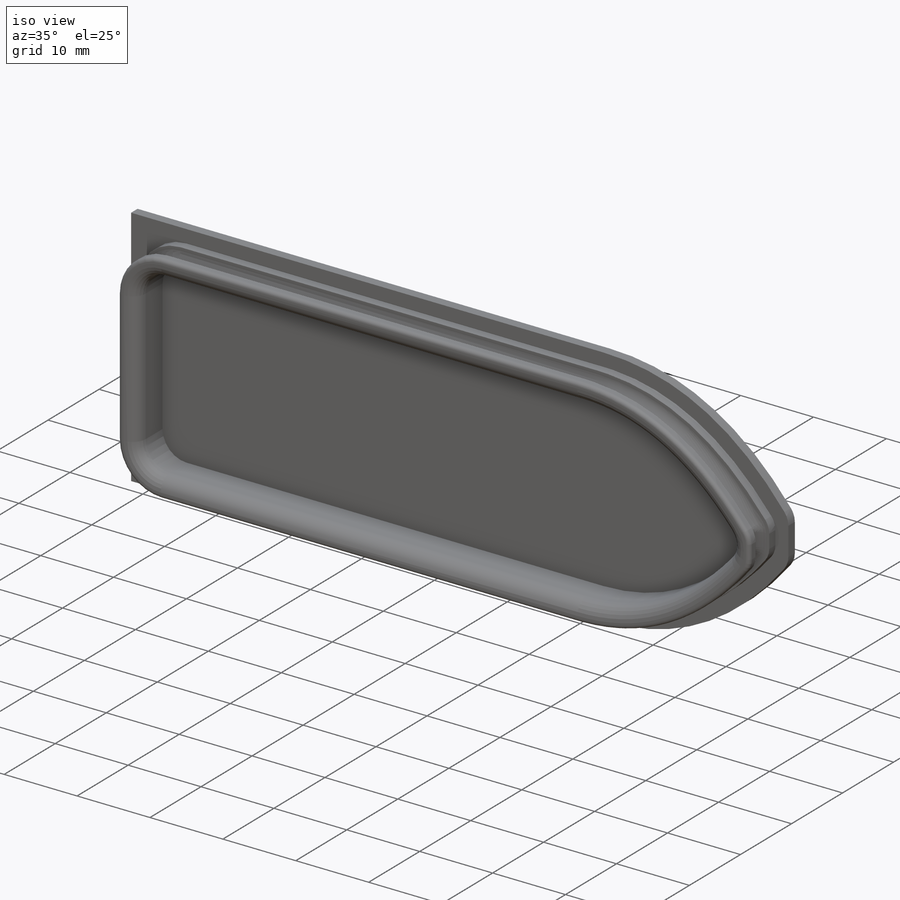
[diagram: iso view]
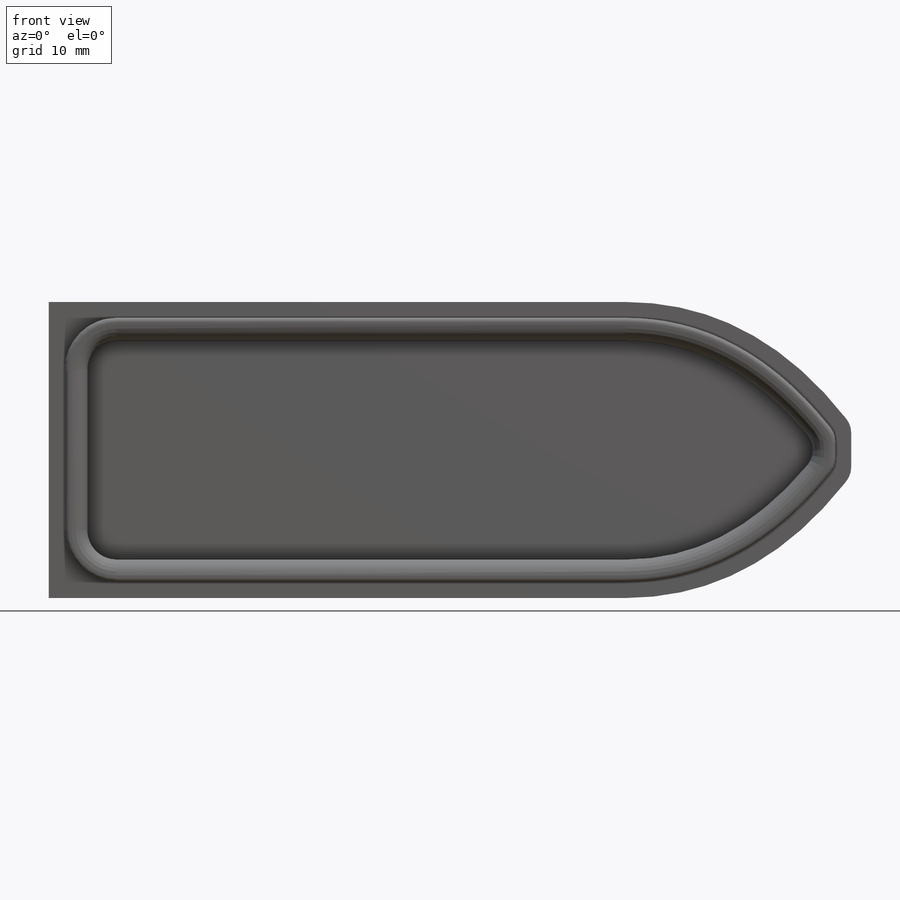
[diagram: front view]
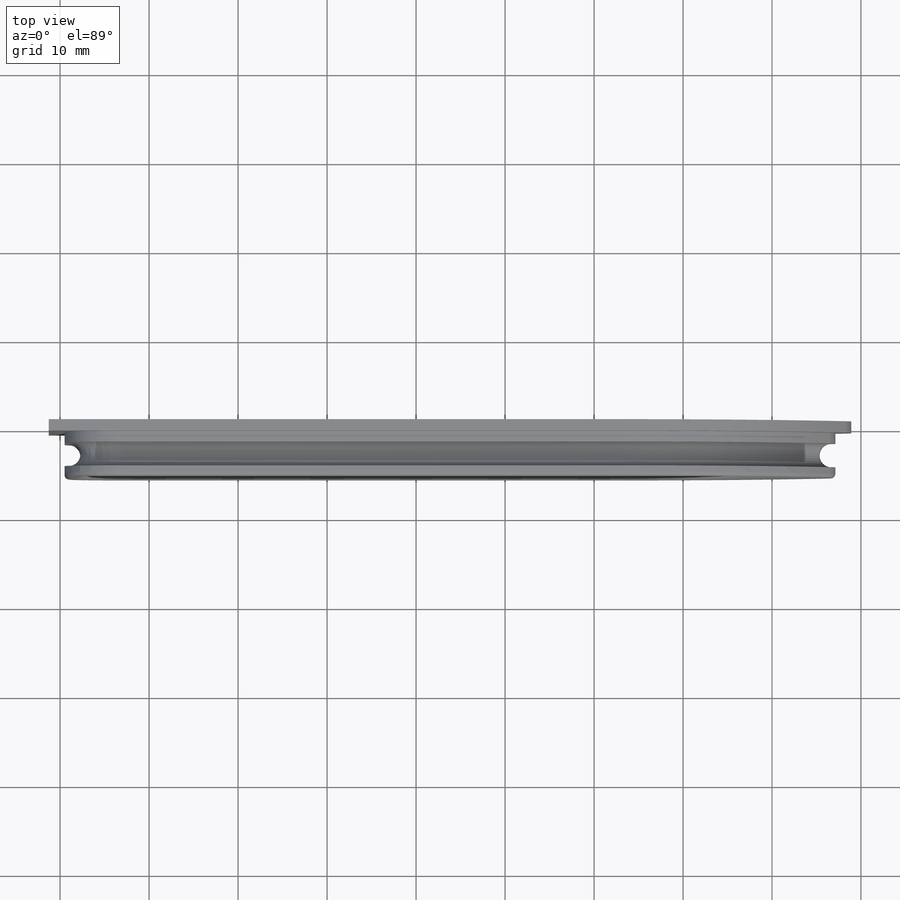
[diagram: top view]
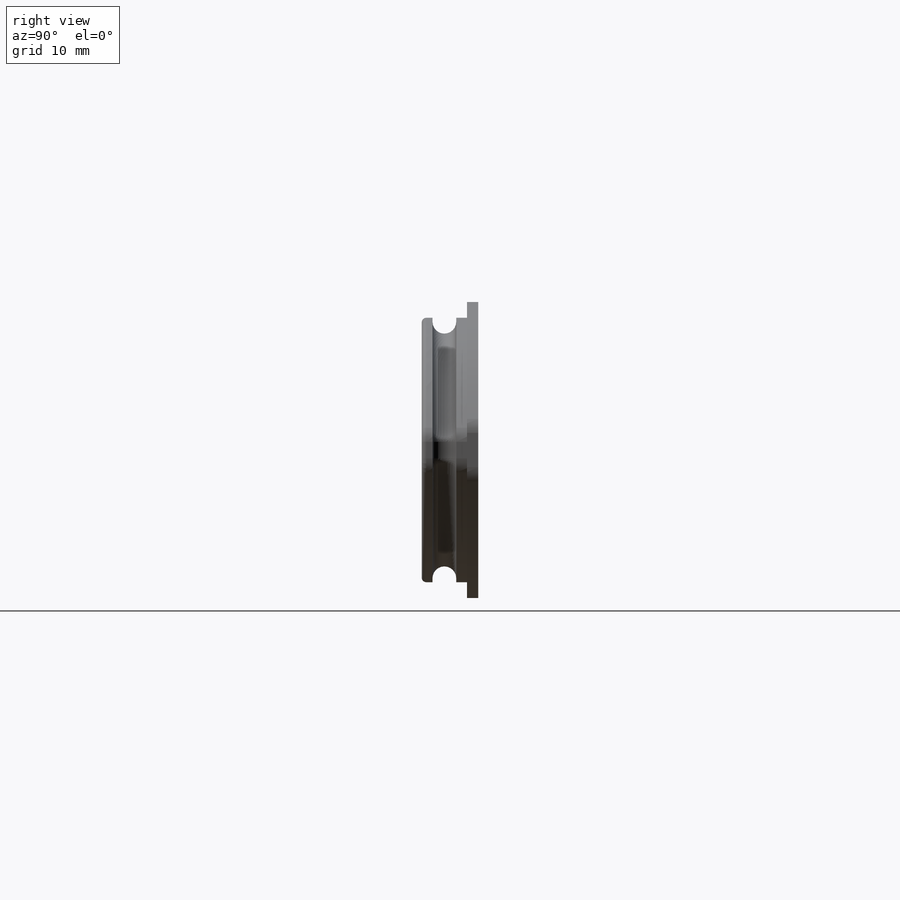
[diagram: right view]
SOLIDWORKS PART (.sldprt)
format: sldprt  version: not decoded by parser v0  size: 1,286,656 bytes
history: native  units: mm
features: sketch x24, plane x7, fillet x3, extrude x2, material x1, sweep x1 (+11 scaffold rows collapsed)
feature tree (49):
  scaffold x11  (default folders/planes/origin — collapsed)
  material  "boat_hull_SLS"
  plane  "Plane2"  Offset=63.5mm
  plane  "Plane1"  Offset=38.1mm
  plane  "Plane3"  Offset=88.9mm
  sketch  "Sketch1"  dims[c1.D4=4.445mm c1.D1=~35.069646mm c2.D1=10.0deg c2.D2=~2.813038mm c3.D2=115.0deg c3.D3=31.75mm c3.D4=~141.982194mm c3.D5=25.4mm c4.D2=25.4mm c4.D3=~14.313501mm c5.D3=110.0deg c5.D1=~25.166254mm c6.D1=80.0deg c6.D2=1.27mm c6.D3=1.27mm c6.D4=1.27mm c6.D5=1.27mm c6.D6=13.97mm c6.D7=20.32mm c6.D8=~6.552874mm c7.D8=100.0deg c7.D9=17.78mm c7.D10=7.62mm c7.D11=15.0deg c7.D12=80.0deg c8.D12=15.367mm c8.D8=~4.107132mm c9.D8=20.0deg c9.D2=~7.920647mm c10.D2=85.0deg c10.D3=2.54mm c10.D4=~22.080722mm c11.D4=20.0deg c11.D8=9.525mm c11.D3=~1.22365mm c12.D3=20.0deg c13.D3=~3.577713mm c14.D3=20.0deg c14.D4=10.922mm c14.D6=24.765mm c14.D9=15.367mm c14.D5=1.27mm]
  sketch  "Sketch7"  dims[D1=0.0mm]
  sketch  "Sketch8"  dims[D1=0.0mm]
  sketch  "Sketch6"  dims[c1.D1=~1.43544mm c2.D1=90.0deg c3.D1=2.54mm c3.D2=2.54mm c3.D3=~4.628941mm c4.D3=62.0deg c4.D4=5.588mm c4.D5=9.525mm c4.D6=3.302mm c4.D1=1.27mm]
  sketch  "3DSketch10"
  sketch  "3DSketch11"
  sketch  "3DSketch12"
  sketch  "3DSketch13"
  sketch  "3DSketch14"
  sketch  "3DSketch15"
  sketch  "3DSketch16"
  sketch  "3DSketch17"
  sketch  "3DSketch19"
  sketch  "3DSketch20"
  sketch  "3DSketch21"
  sketch  "3DSketch22"
  sketch  "3DSketch23"
  sketch  "3DSketch24"
  plane  "Plane5"
  sketch  "Sketch12"  dims[D3=6.35mm D1=12.954mm D2=16.51mm]
  plane  "Plane4"  Offset=25.0825mm
  sketch  "Sketch13"  dims[D1=8.255mm D2=2.921mm D3=7.112mm]
  plane  "Plane6"
  sketch  "Sketch19"  dims[D1=1.27mm]
  extrude  "Boss-Extrude7"  Depth=1.27mm
  sketch  "Sketch20"  dims[c1.D2=6.35mm c1.D3=6.35mm c2.D2=6.35mm c2.D3=6.35mm c2.D1=1.778mm c2.D4=0.508mm c2.D5=3.048mm]
  extrude  "Boss-Extrude8"  Depth=5.08mm
  fillet  "Fillet1"  Radius=2.54mm
  plane  "Plane7"  Offset=2.54mm
  sketch  "Sketch21"  dims[D1=2.667mm D2=2.54mm D3=0.381mm D4=~10.948586mm]
  sketch  "Sketch22"  dims[D1=0.4445mm]
  sweep  "Cut-Sweep1"
  fillet  "Fillet3"  Radius=1.778mm
  fillet  "Fillet4"  Radius=0.508mm
decode coverage: 15 of 30 modeling features carry decoded parameters
note: ~ marks probable driven/reference dimensions
note: suppression state not decoded; provenance and decode notes live in map.json
